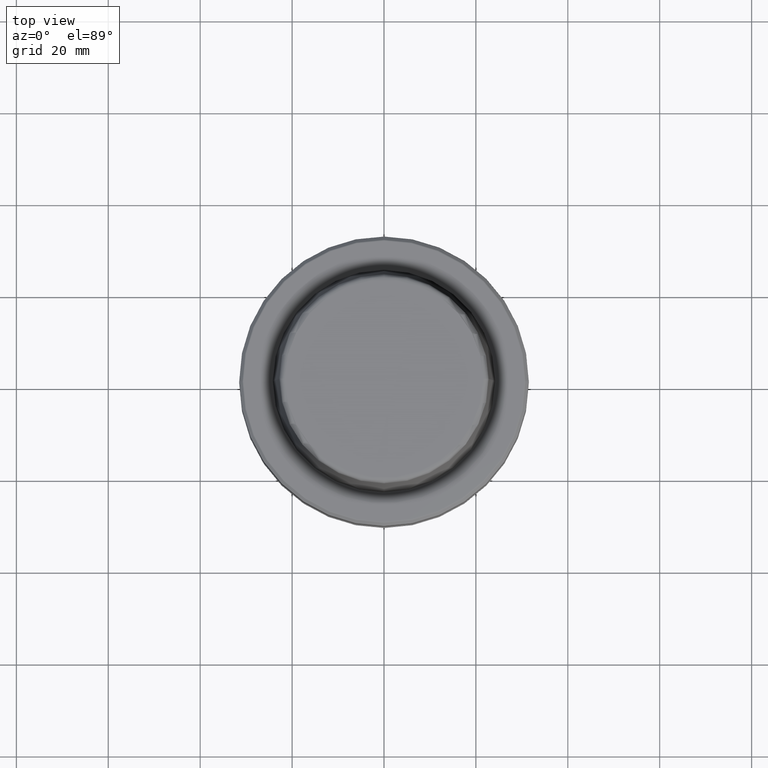
[diagram: clean part render]
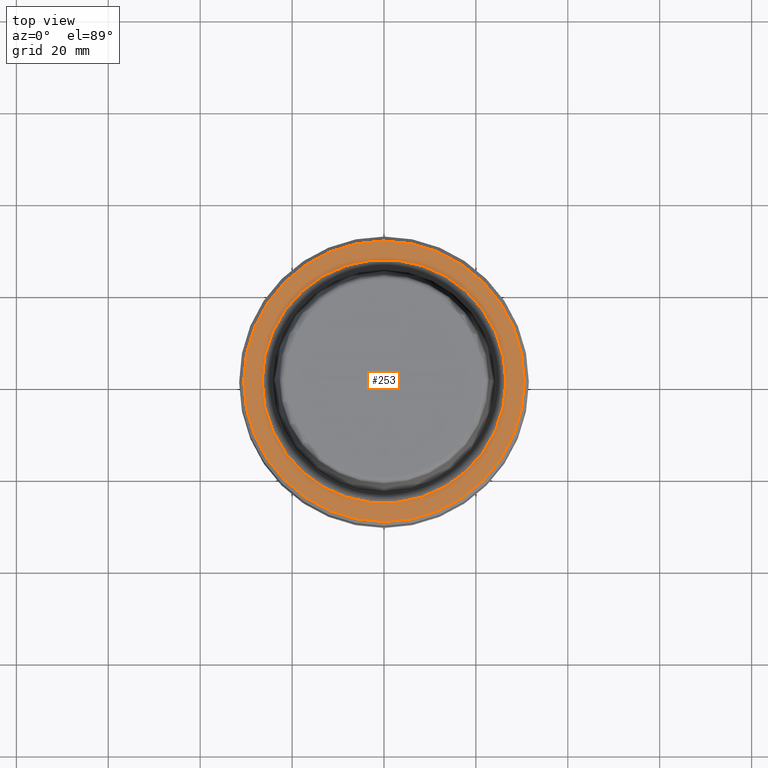
[diagram: same view with one face highlighted and labeled with its STEP entity id]
A machine part, top view. The second image highlights one B-rep face of the part: STEP entity #253.
In plain terms, the highlighted planar face has unit normal (0, 0, -1).
Its self-contained STEP definition (entity closure, byte-faithful):
#15 = VERTEX_POINT ( 'NONE', #671 ) ;
#39 = VERTEX_POINT ( 'NONE', #888 ) ;
#40 = EDGE_LOOP ( 'NONE', ( #532, #1141 ) ) ;
#164 = EDGE_CURVE ( 'NONE', #421, #15, #1201, .T. ) ;
#181 = EDGE_LOOP ( 'NONE', ( #352, #241 ) ) ;
#241 = ORIENTED_EDGE ( 'NONE', *, *, #537, .F. ) ;
#253 = ADVANCED_FACE ( 'NONE', ( #969, #440 ), #958, .F. ) ;
#351 = EDGE_CURVE ( 'NONE', #565, #39, #910, .T. ) ;
#352 = ORIENTED_EDGE ( 'NONE', *, *, #164, .F. ) ;
#360 = CIRCLE ( 'NONE', #791, 26.52499999999999900 ) ;
#420 = DIRECTION ( 'NONE',  ( -0.0000000000000000000, -0.0000000000000000000, 1.000000000000000000 ) ) ;
#421 = VERTEX_POINT ( 'NONE', #990 ) ;
#425 = CARTESIAN_POINT ( 'NONE',  ( 0.0000000000000000000, 0.0000000000000000000, 0.0000000000000000000 ) ) ;
#440 = FACE_OUTER_BOUND ( 'NONE', #40, .T. ) ;
#477 = AXIS2_PLACEMENT_3D ( 'NONE', #1011, #420, #1112 ) ;
#486 = DIRECTION ( 'NONE',  ( 0.0000000000000000000, 0.0000000000000000000, -1.000000000000000000 ) ) ;
#487 = CARTESIAN_POINT ( 'NONE',  ( 0.0000000000000000000, 0.0000000000000000000, 0.0000000000000000000 ) ) ;
#524 = DIRECTION ( 'NONE',  ( 1.000000000000000000, 0.0000000000000000000, 0.0000000000000000000 ) ) ;
#528 = DIRECTION ( 'NONE',  ( -0.0000000000000000000, -0.0000000000000000000, 1.000000000000000000 ) ) ;
#532 = ORIENTED_EDGE ( 'NONE', *, *, #351, .T. ) ;
#537 = EDGE_CURVE ( 'NONE', #15, #421, #360, .T. ) ;
#565 = VERTEX_POINT ( 'NONE', #1080 ) ;
#588 = DIRECTION ( 'NONE',  ( 1.000000000000000000, 0.0000000000000000000, 0.0000000000000000000 ) ) ;
#671 = CARTESIAN_POINT ( 'NONE',  ( -26.52499999999999900, 3.248375634738354300E-015, 0.0000000000000000000 ) ) ;
#791 = AXIS2_PLACEMENT_3D ( 'NONE', #425, #1116, #524 ) ;
#888 = CARTESIAN_POINT ( 'NONE',  ( -30.53431457505076100, 3.756694181974138600E-015, 0.0000000000000000000 ) ) ;
#910 = CIRCLE ( 'NONE', #1042, 30.53431457505076100 ) ;
#958 = PLANE ( 'NONE',  #1192 ) ;
#969 = FACE_BOUND ( 'NONE', #181, .T. ) ;
#990 = CARTESIAN_POINT ( 'NONE',  ( 26.52499999999999900, 0.0000000000000000000, 0.0000000000000000000 ) ) ;
#1011 = CARTESIAN_POINT ( 'NONE',  ( 0.0000000000000000000, 0.0000000000000000000, 0.0000000000000000000 ) ) ;
#1035 = EDGE_CURVE ( 'NONE', #39, #565, #1234, .T. ) ;
#1042 = AXIS2_PLACEMENT_3D ( 'NONE', #1119, #528, #1221 ) ;
#1067 = CARTESIAN_POINT ( 'NONE',  ( 0.0000000000000000000, 26.52499999999999900, -1.111307226797642000E-015 ) ) ;
#1080 = CARTESIAN_POINT ( 'NONE',  ( 30.53431457505076100, 0.0000000000000000000, 0.0000000000000000000 ) ) ;
#1089 = AXIS2_PLACEMENT_3D ( 'NONE', #487, #1178, #588 ) ;
#1112 = DIRECTION ( 'NONE',  ( 1.000000000000000000, 0.0000000000000000000, 0.0000000000000000000 ) ) ;
#1116 = DIRECTION ( 'NONE',  ( -0.0000000000000000000, -0.0000000000000000000, 1.000000000000000000 ) ) ;
#1119 = CARTESIAN_POINT ( 'NONE',  ( 0.0000000000000000000, 0.0000000000000000000, 0.0000000000000000000 ) ) ;
#1141 = ORIENTED_EDGE ( 'NONE', *, *, #1035, .T. ) ;
#1178 = DIRECTION ( 'NONE',  ( -0.0000000000000000000, -0.0000000000000000000, 1.000000000000000000 ) ) ;
#1192 = AXIS2_PLACEMENT_3D ( 'NONE', #1067, #486, #1218 ) ;
#1201 = CIRCLE ( 'NONE', #1089, 26.52499999999999900 ) ;
#1218 = DIRECTION ( 'NONE',  ( -1.000000000000000000, 0.0000000000000000000, -0.0000000000000000000 ) ) ;
#1221 = DIRECTION ( 'NONE',  ( 1.000000000000000000, 0.0000000000000000000, 0.0000000000000000000 ) ) ;
#1234 = CIRCLE ( 'NONE', #477, 30.53431457505076100 ) ;